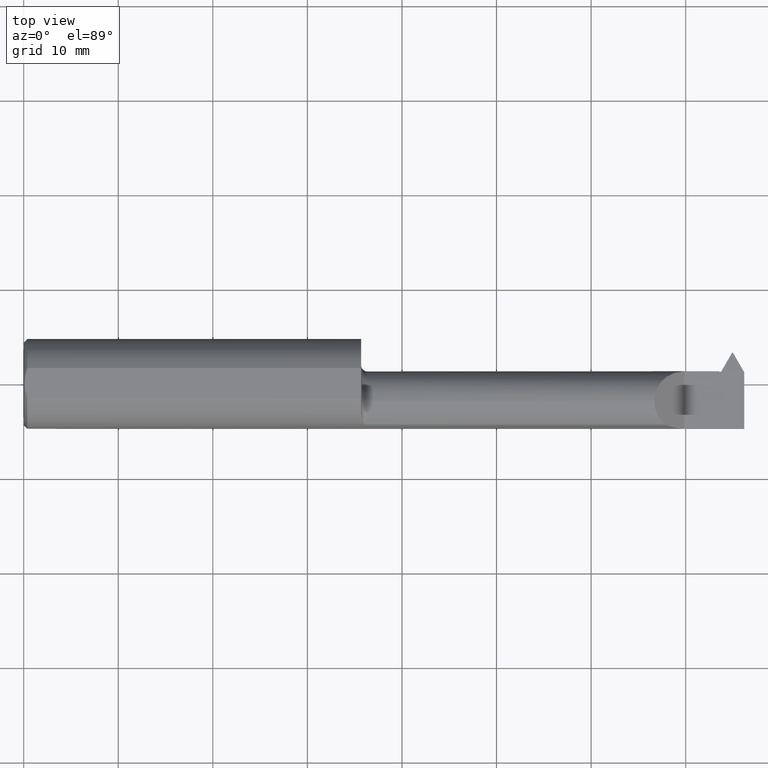
[diagram: clean part render]
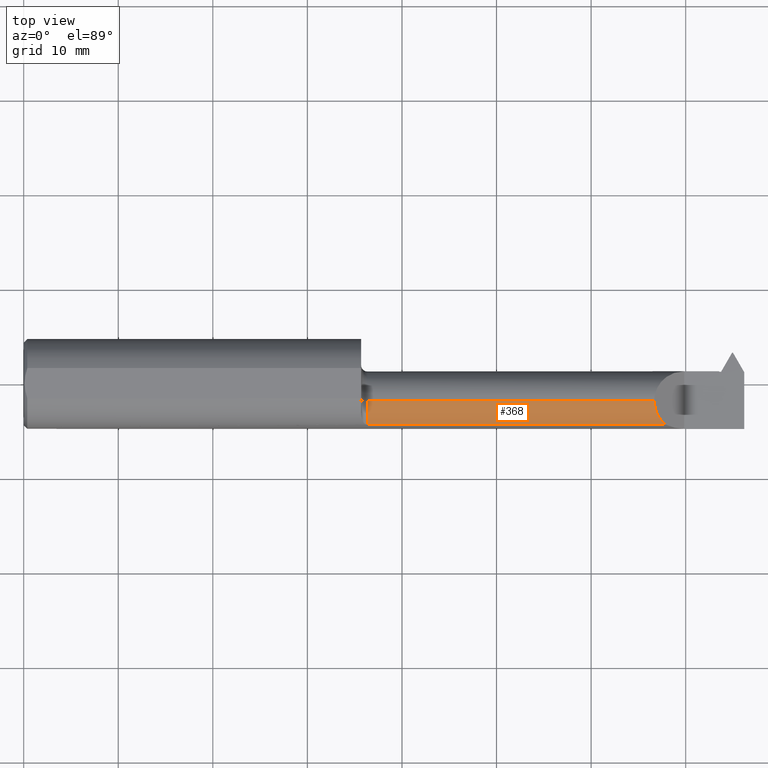
[diagram: same view with one face highlighted and labeled with its STEP entity id]
A machine part, top view. The second image highlights one B-rep face of the part: STEP entity #368.
In plain terms, the highlighted cylindrical surface (edge-blend (fillet) strip) has radius 3.175 mm, axis along (-1, -0, -0).
Its self-contained STEP definition (entity closure, byte-faithful):
#23 = LINE ( 'NONE', #780, #462 ) ;
#78 = VERTEX_POINT ( 'NONE', #123 ) ;
#85 = CARTESIAN_POINT ( 'NONE',  ( 2.625350000000000517, -0.07234999999999998377, 0.1250000000000000000 ) ) ;
#93 = EDGE_LOOP ( 'NONE', ( #850, #502, #334, #713 ) ) ;
#120 = VERTEX_POINT ( 'NONE', #85 ) ;
#123 = CARTESIAN_POINT ( 'NONE',  ( 1.429999999999999938, -0.07234999999999998377, 0.1250000000000000000 ) ) ;
#156 = VECTOR ( 'NONE', #878, 39.37007874015748143 ) ;
#178 = EDGE_CURVE ( 'NONE', #120, #727, #411, .T. ) ;
#276 = DIRECTION ( 'NONE',  ( 0.000000000000000000, 0.000000000000000000, -1.000000000000000000 ) ) ;
#288 = EDGE_CURVE ( 'NONE', #120, #78, #23, .T. ) ;
#328 = FACE_OUTER_BOUND ( 'NONE', #93, .T. ) ;
#334 = ORIENTED_EDGE ( 'NONE', *, *, #718, .T. ) ;
#337 = CARTESIAN_POINT ( 'NONE',  ( 1.405000000000000249, -0.07234999999999998377, 0.000000000000000000 ) ) ;
#368 = ADVANCED_FACE ( 'NONE', ( #328 ), #624, .T. ) ;
#411 =( BOUNDED_CURVE ( )  B_SPLINE_CURVE ( 3, ( #522, #654, #661, #807 ),
 .UNSPECIFIED., .F., .T. ) 
 B_SPLINE_CURVE_WITH_KNOTS ( ( 4, 4 ),
 ( 0.000000000000000000, 0.9064365498903768081 ),
 .UNSPECIFIED. ) 
 CURVE ( )  GEOMETRIC_REPRESENTATION_ITEM ( )  RATIONAL_B_SPLINE_CURVE ( ( 1.000000000000000000, 0.9326950686634384313, 0.9326950686634384313, 1.000000000000000000 ) ) 
 REPRESENTATION_ITEM ( '' )  );
#416 = AXIS2_PLACEMENT_3D ( 'NONE', #337, #480, #559 ) ;
#428 = CARTESIAN_POINT ( 'NONE',  ( 2.673280599499922694, -0.1707639599170701628, 0.07706940050007689280 ) ) ;
#449 = VERTEX_POINT ( 'NONE', #717 ) ;
#462 = VECTOR ( 'NONE', #486, 39.37007874015748143 ) ;
#468 = AXIS2_PLACEMENT_3D ( 'NONE', #871, #729, #276 ) ;
#480 = DIRECTION ( 'NONE',  ( -1.000000000000000000, -0.000000000000000000, -0.000000000000000000 ) ) ;
#486 = DIRECTION ( 'NONE',  ( -1.000000000000000000, -0.000000000000000000, -0.000000000000000000 ) ) ;
#502 = ORIENTED_EDGE ( 'NONE', *, *, #288, .T. ) ;
#522 = CARTESIAN_POINT ( 'NONE',  ( 2.625350000000000517, -0.07234999999999998377, 0.1250000000000000000 ) ) ;
#559 = DIRECTION ( 'NONE',  ( 0.000000000000000000, 0.000000000000000000, 1.000000000000000000 ) ) ;
#571 = LINE ( 'NONE', #735, #156 ) ;
#624 = CYLINDRICAL_SURFACE ( 'NONE', #416, 0.1250000000000000000 ) ;
#654 = CARTESIAN_POINT ( 'NONE',  ( 2.625350000000000517, -0.1114715001235034170, 0.1249999999999999861 ) ) ;
#661 = CARTESIAN_POINT ( 'NONE',  ( 2.642479785539522563, -0.1466433954276133433, 0.1078702144604781754 ) ) ;
#713 = ORIENTED_EDGE ( 'NONE', *, *, #806, .T. ) ;
#717 = CARTESIAN_POINT ( 'NONE',  ( 1.429999999999999938, -0.1707639599170698019, 0.07706940050007766996 ) ) ;
#718 = EDGE_CURVE ( 'NONE', #78, #449, #893, .T. ) ;
#727 = VERTEX_POINT ( 'NONE', #428 ) ;
#729 = DIRECTION ( 'NONE',  ( 1.000000000000000000, 0.000000000000000000, 0.000000000000000000 ) ) ;
#735 = CARTESIAN_POINT ( 'NONE',  ( 2.152499999999999858, -0.1707639599170698019, 0.07706940050007766996 ) ) ;
#780 = CARTESIAN_POINT ( 'NONE',  ( 1.405000000000000249, -0.07234999999999998377, 0.1250000000000000000 ) ) ;
#806 = EDGE_CURVE ( 'NONE', #449, #727, #571, .T. ) ;
#807 = CARTESIAN_POINT ( 'NONE',  ( 2.673280599499922694, -0.1707639599170701628, 0.07706940050007689280 ) ) ;
#850 = ORIENTED_EDGE ( 'NONE', *, *, #178, .F. ) ;
#871 = CARTESIAN_POINT ( 'NONE',  ( 1.429999999999999938, -0.07234999999999998377, 0.000000000000000000 ) ) ;
#878 = DIRECTION ( 'NONE',  ( 1.000000000000000000, 0.000000000000000000, 0.000000000000000000 ) ) ;
#893 = CIRCLE ( 'NONE', #468, 0.1250000000000000000 ) ;